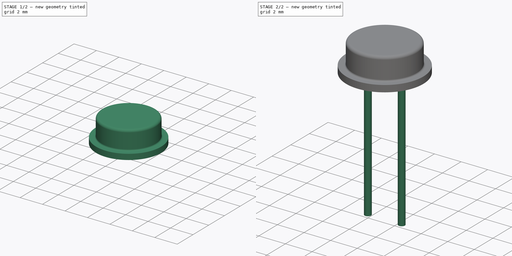
[diagram: build sequence overview — one tinted view per stage of 2, left to right]
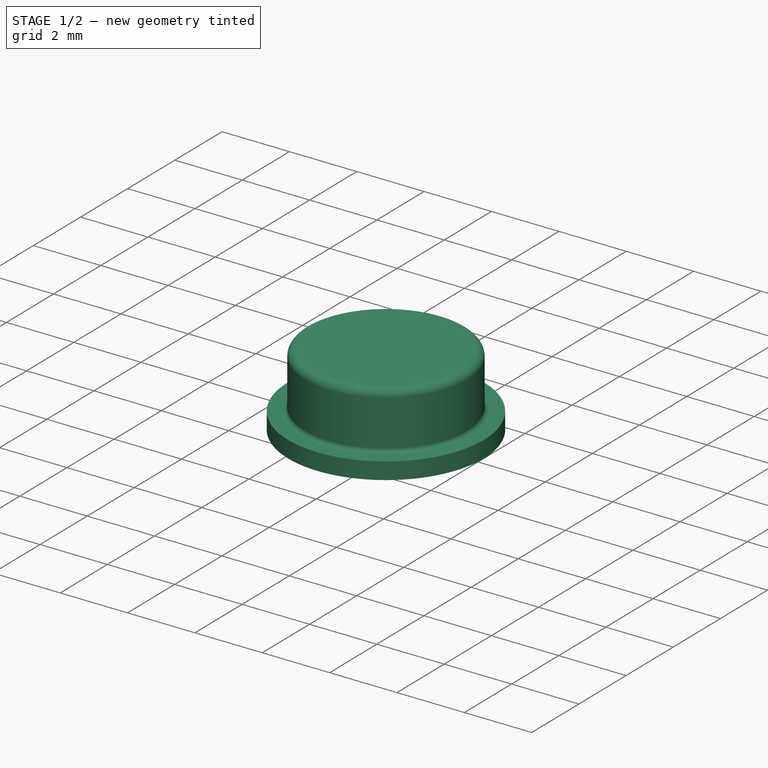
[diagram: stage 1 of 2 — iso view after this stage's code; geometry added in this stage tinted green]
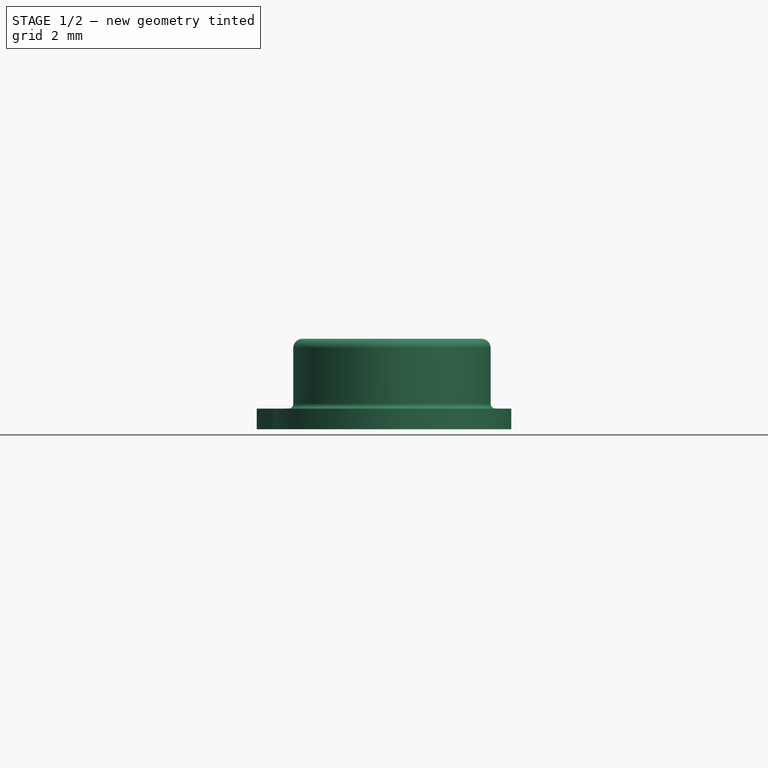
[diagram: stage 1 of 2 — front view after this stage's code; geometry added in this stage tinted green]
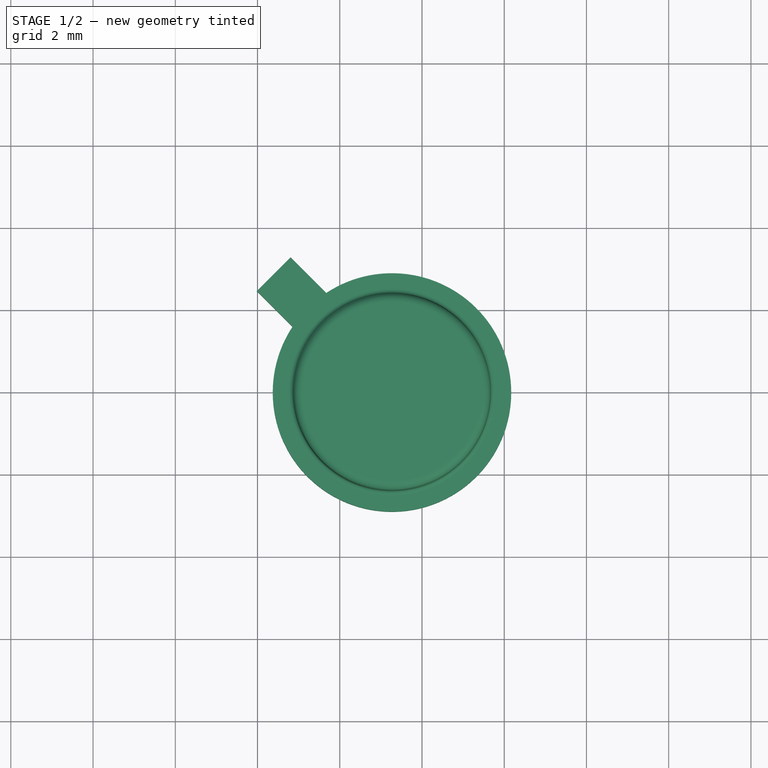
[diagram: stage 1 of 2 — top view after this stage's code; geometry added in this stage tinted green]
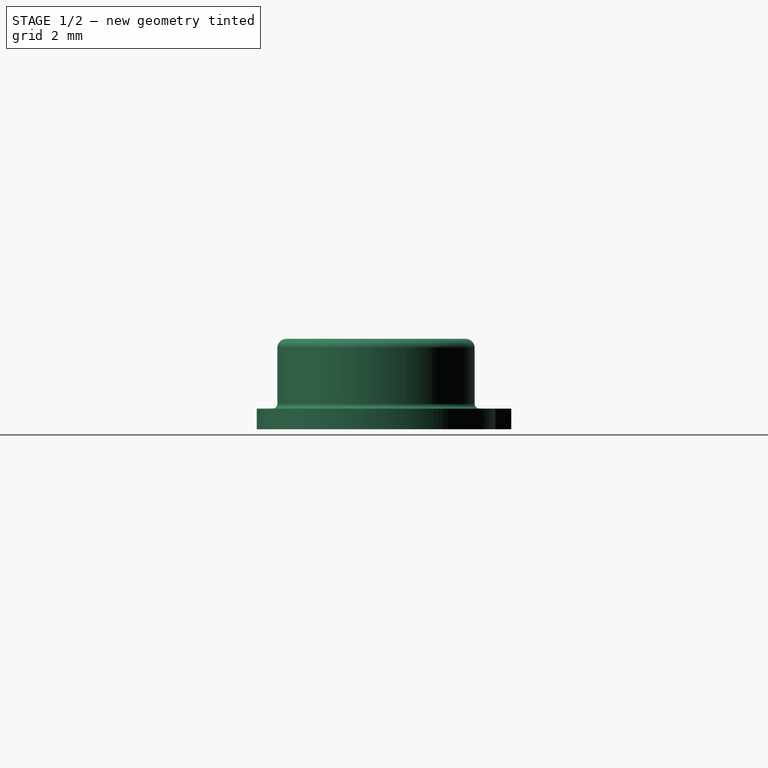
[diagram: stage 1 of 2 — right view after this stage's code; geometry added in this stage tinted green]
FCSTD DOCUMENT  (FreeCAD 0.16R6703 (Git))
Label: TO-46_2Pin
License: All rights reserved
LicenseURL: http://en.wikipedia.org/wiki/All_rights_reserved
objects: Sketcher::SketchObject×3, PartDesign::Pad×2, PartDesign::Revolution×1, Spreadsheet::Sheet×1
note: 9 computed .brp shape members not serialized (recipe doc carries the construction recipe); baked Part::Feature solids carry a one-line shape summary decoded from their .brp

FEATURE [Sketcher::SketchObject] Sketch003
  Placement = pos=(0,0,0) rot=(1,0,0;1.5708rad)
  expr: Constraints[4] = dims.pin_upper_length
  expr: Constraints[7] = dims.height
  expr: Constraints[1] = dims.Dpin / 2
  expr: Constraints[10] = dims.DBot / 2
  expr: Constraints[19] = dims.DTop / 2
  sketch-geometry (9):
    g0: LineSegment [constr] StartX=1.27 StartY=2.55067 StartZ=0 EndX=1.27 EndY=7.2 EndZ=0
    g1: LineSegment StartX=1.27 StartY=5 StartZ=0 EndX=-1.63 EndY=5 EndZ=0
    g2: LineSegment StartX=-1.63 StartY=5 StartZ=0 EndX=-1.63 EndY=5.5 EndZ=0
    g3: LineSegment StartX=1.27 StartY=7.2 StartZ=0 EndX=1.27 EndY=5 EndZ=0
    g4: LineSegment StartX=-1.63 StartY=5.5 StartZ=0 EndX=-1.2467 EndY=5.50302 EndZ=0
    g5: LineSegment StartX=-1.13 StartY=5.62065 StartZ=0 EndX=-1.13 EndY=6.97692 EndZ=0
    g6: LineSegment StartX=-0.90692 StartY=7.2 StartZ=0 EndX=1.27 EndY=7.2 EndZ=0
    g7: ArcOfCircle CenterX=-0.90692 CenterY=6.97692 CenterZ=0 NormalX=0 NormalY=0 NormalZ=1 Radius=0.22308 StartAngle=1.5708 EndAngle=3.14159
    g8: ArcOfCircle CenterX=-1.24763 CenterY=5.62065 CenterZ=0 NormalX=0 NormalY=0 NormalZ=1 Radius=0.117626 StartAngle=4.72028 EndAngle=6.28319
  constraints (22):
    c: Vertical(g0)
    c: DistanceX(g-1,g0) = 1.27
    c: PointOnObject(g1,g0)
    c: Horizontal(g1)
    c: DistanceY(g-1,g1) = 5
    c: Coincident(g2,g1)
    c: Vertical(g2)
    c: DistanceY(g1,g3) = 2.2
    c: Coincident(g3,g1)
    c: DistanceY(g2,g2) = 0.5
    c: DistanceX(g1,g1) = 2.9
    c: Coincident(g4,g2)
    c: Vertical(g5)
    c: Coincident(g6,g0)
    c: Horizontal(g6)
    c: Tangent(g6,g7) = 1.5708
    c: Tangent(g5,g7) = 1.5708
    c: Tangent(g4,g8) = -1.5708
    c: Tangent(g5,g8) = -1.5708
    c: DistanceX(g5,g0) = 2.4
    c: Vertical(g3)
    c: Coincident(g0,g3)
FEATURE [PartDesign::Revolution] Revolution
  Angle = 360
  Axis = (0,0,4.64933)
  Base = (1.27,0,2.55067)
  Placement = pos=(0,0,0) rot=(1,0,0;1.5708rad)
  ReferenceAxis = -> Sketch003 [Axis0]
  Sketch = -> Sketch003
FEATURE [Sketcher::SketchObject] Sketch004
  Placement = pos=(0,0,5) rot=(0,0,1;0rad)
  expr: Constraints[1] = dims.Dpin / 2
  expr: Constraints[10] = dims.nibble_w
  expr: Constraints[11] = dims.DBot / 2 + dims.nibble_l
  sketch-geometry (5):
    g0: GeomPoint [constr] X=1.27 Y=0 Z=0
    g1: LineSegment StartX=1.68012 StartY=0.410122 StartZ=0 EndX=-1.1978 EndY=3.28805 EndZ=0
    g2: LineSegment StartX=0.859878 StartY=-0.410122 StartZ=0 EndX=-2.01805 EndY=2.4678 EndZ=0
    g3: LineSegment StartX=-2.01805 StartY=2.4678 StartZ=0 EndX=-1.1978 EndY=3.28805 EndZ=0
    g4: LineSegment StartX=0.859878 StartY=-0.410122 StartZ=0 EndX=1.68012 EndY=0.410122 EndZ=0
  constraints (14):
    c: PointOnObject(g0,g-1)
    c: DistanceX(g-1,g0) = 1.27
    c: Coincident(g3,g2)
    c: Coincident(g3,g1)
    c: Coincident(g4,g2)
    c: Coincident(g4,g1)
    c: PointOnObject(g0,g4)
    c: Parallel(g4,g3)
    c: Parallel(g2,g1)
    c: Perpendicular(g2,g3)
    c: Distance(g3) = 1.16
    c: Distance(g1) = 4.07
    c: Symmetric(g4,g4,g0)
    c: Angle(g4,g-1) = 2.35619
FEATURE [PartDesign::Pad] Pad003
  Length = 0.5
  Length2 = 100
  Placement = pos=(0,0,5) rot=(0,0,1;0rad)
  Sketch = -> Sketch004
  Type = 0
FEATURE [Spreadsheet::Sheet] Spreadsheet  label="dims"
  cells = A1=bottom diameter; B1(DBot)=5.8; A2=top diameter; B2(DTop)=4.8; A3=pin diameter; B3(Dpin)=2.54; A4=height; B4(height)=2.2; A5=nible; B5(nibble_w)=1.16; C5(nibble_l)=1.17; A6=pin diameter; B6(pin_diameter)=0.48; A7=pin length; B7(pin_length)=8; A8=pin upper length; B8(pin_upper_length)=5
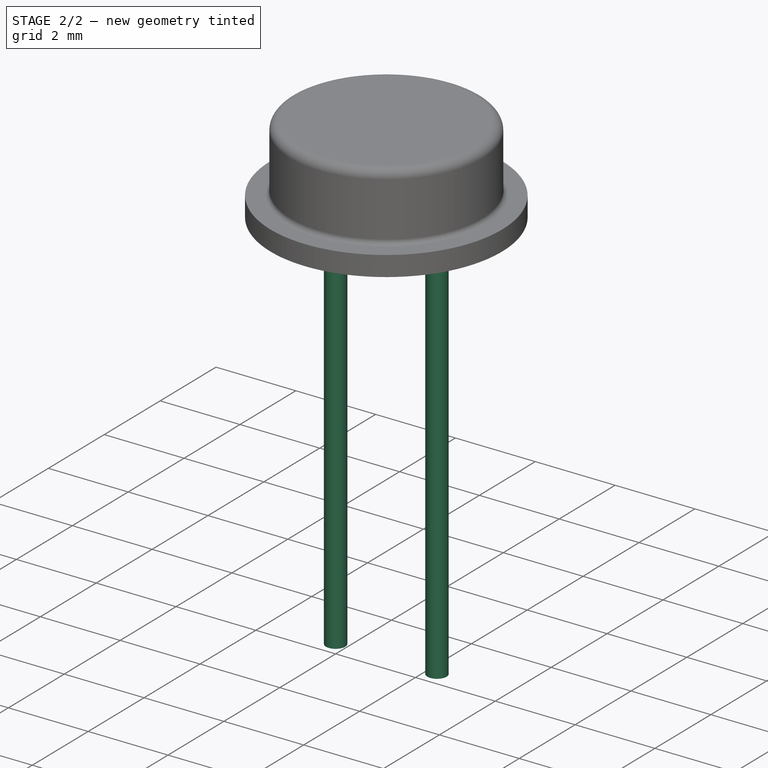
[diagram: stage 2 of 2 — iso view after this stage's code; geometry added in this stage tinted green]
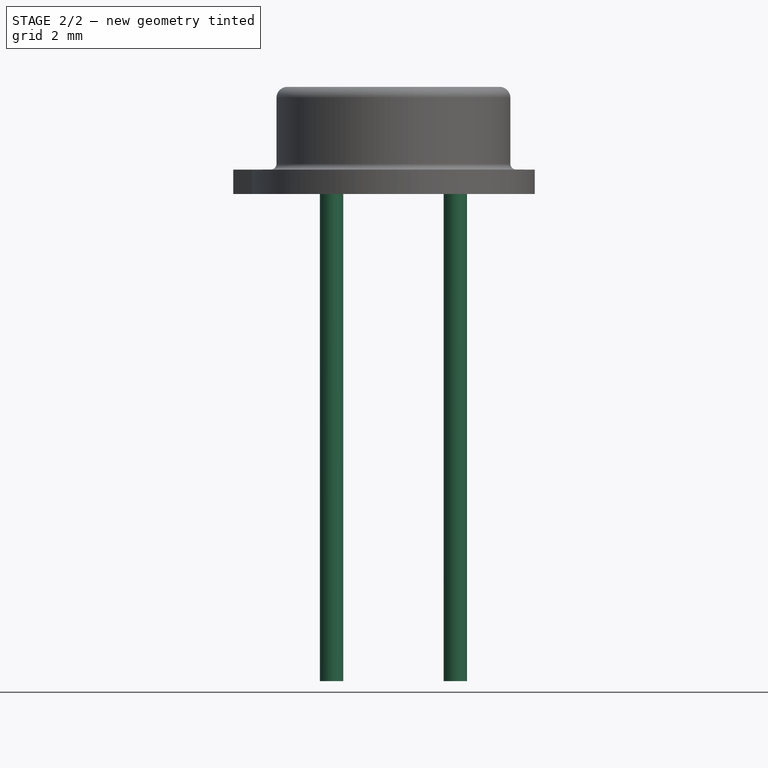
[diagram: stage 2 of 2 — front view after this stage's code; geometry added in this stage tinted green]
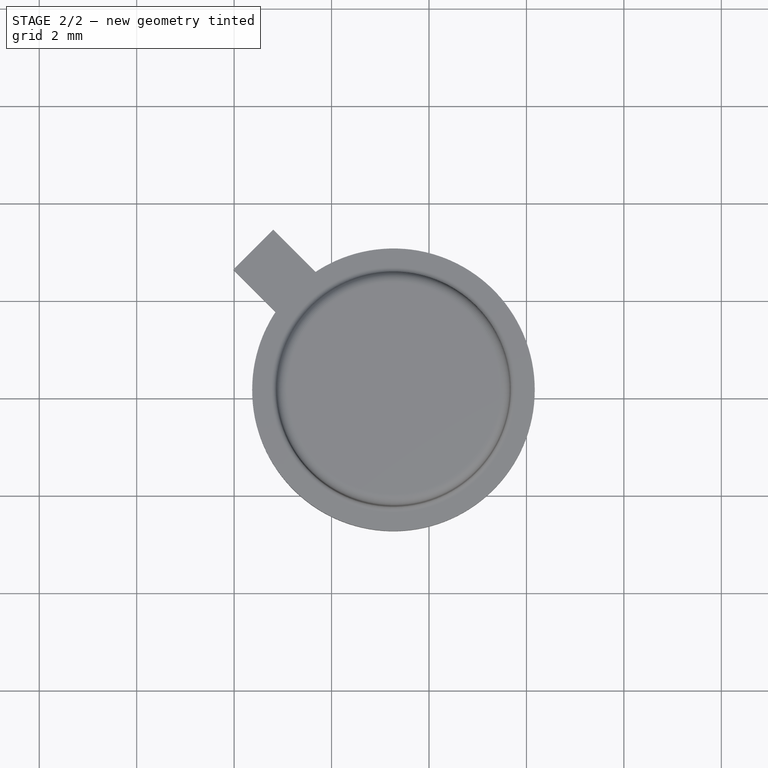
[diagram: stage 2 of 2 — top view after this stage's code; geometry added in this stage tinted green]
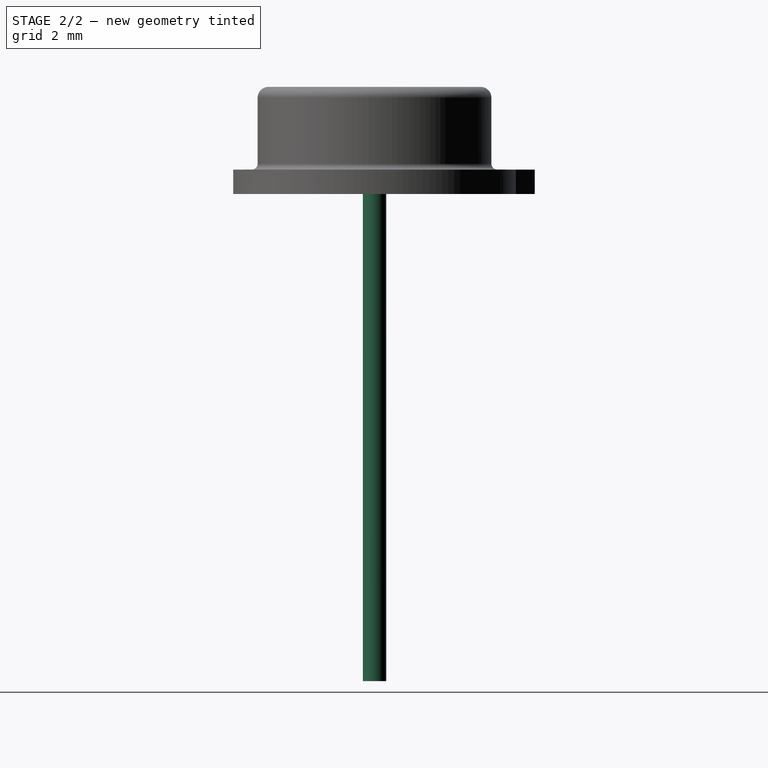
[diagram: stage 2 of 2 — right view after this stage's code; geometry added in this stage tinted green]
FEATURE [Sketcher::SketchObject] Sketch
  Placement = pos=(0,0,5) rot=(0,0,1;0rad)
  expr: Constraints[5] = dims.Dpin / 2
  expr: Constraints[4] = dims.Dpin / 2
  sketch-geometry (3):
    g0: Circle CenterX=0 CenterY=0 CenterZ=0 NormalX=0 NormalY=0 NormalZ=1 Radius=0.24
    g1: Circle CenterX=2.54 CenterY=0 CenterZ=0 NormalX=0 NormalY=0 NormalZ=1 Radius=0.24
    g2: Circle [constr] CenterX=1.27 CenterY=0 CenterZ=0 NormalX=0 NormalY=0 NormalZ=1 Radius=1.27
  constraints (8):
    c: Coincident(g0,g-1)
    c: Radius(g0) = 0.24
    c: Equal(g1,g0)
    c: PointOnObject(g2,g-1)
    c: Radius(g2) = 1.27
    c: DistanceX(g-1,g2) = 1.27
    c: PointOnObject(g1,g2)
    c: PointOnObject(g1,g-1)
FEATURE [PartDesign::Pad] Pad
  Length = 10
  Length2 = 100
  Placement = pos=(0,0,5) rot=(0,0,1;0rad)
  Reversed = true
  Sketch = -> Sketch
  Type = 0
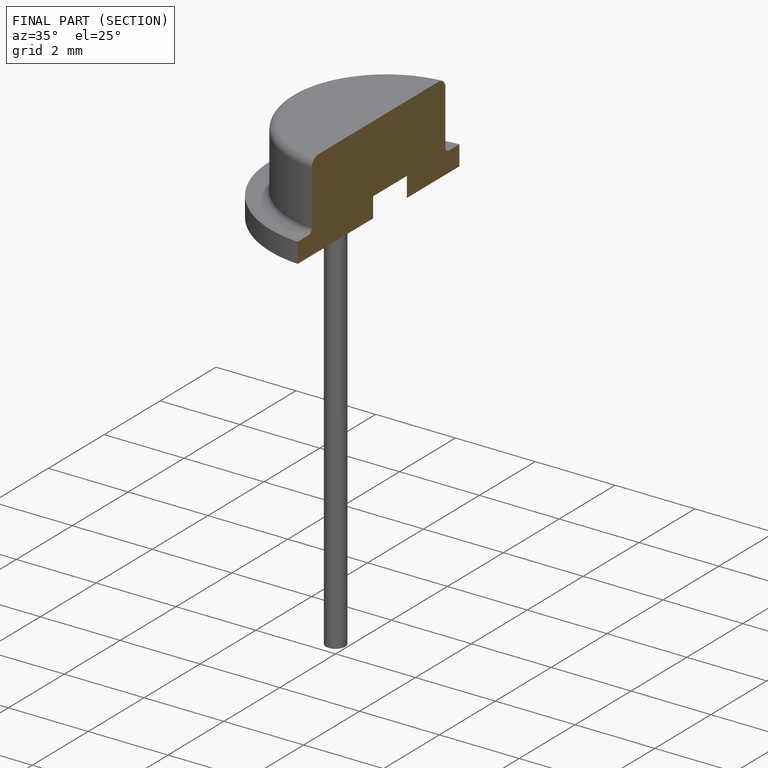
[diagram: finished part — half-section view (interior)]
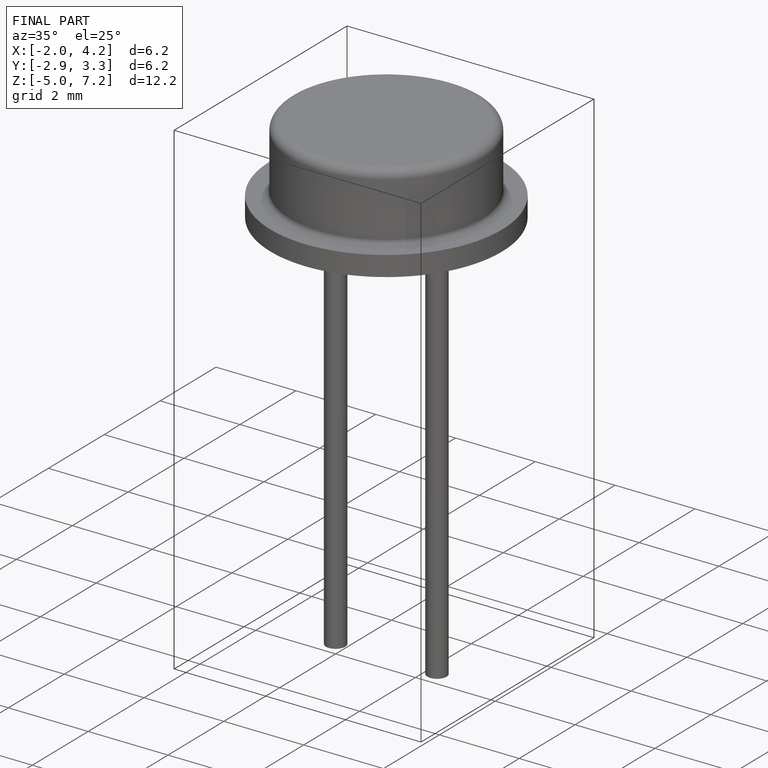
[diagram: finished part — iso view with bounding-box wireframe]
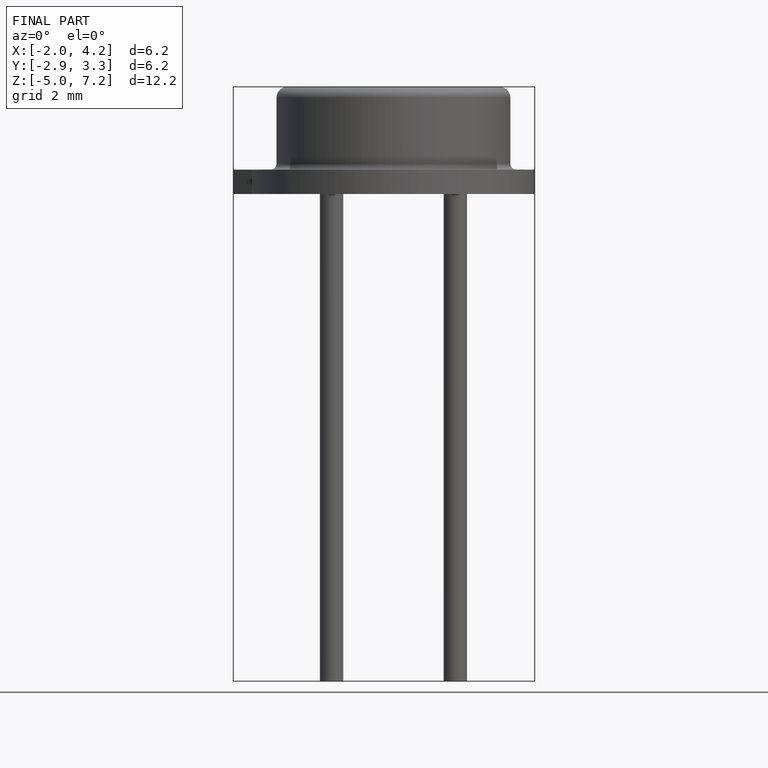
[diagram: finished part — front view with bounding-box wireframe]
